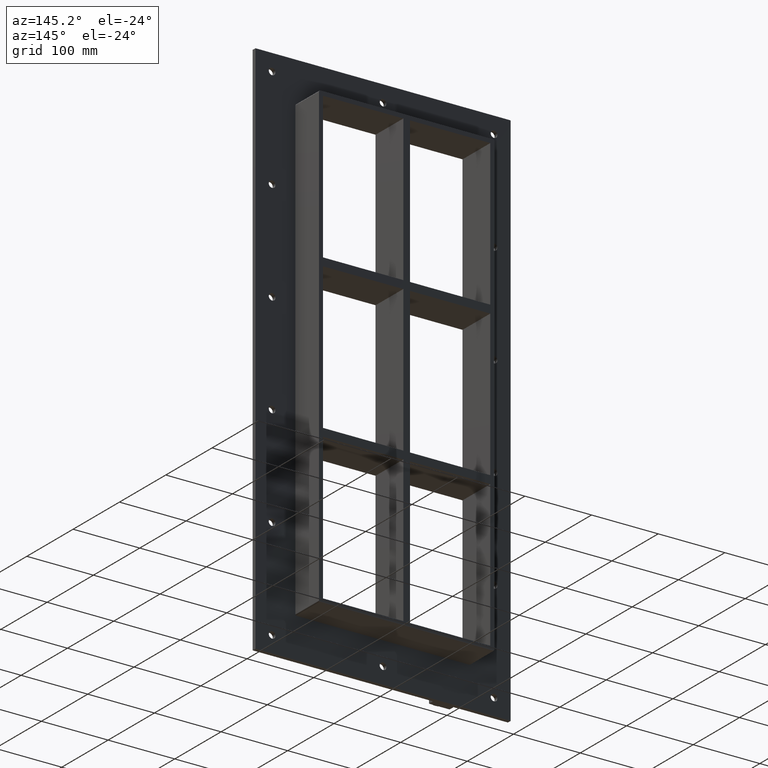
[diagram: clean part render]
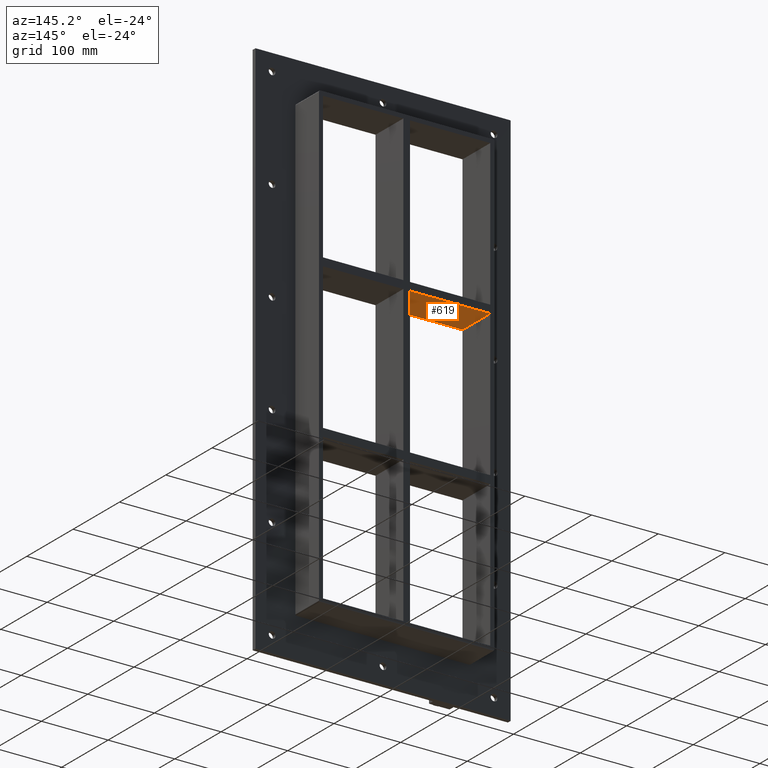
[diagram: same view with one face highlighted and labeled with its STEP entity id]
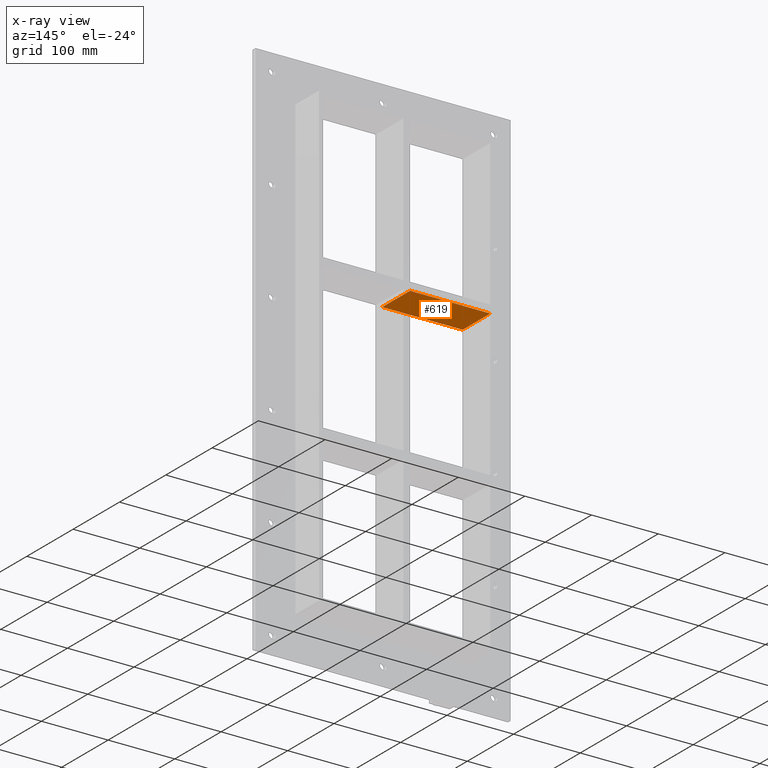
[diagram: x-ray of the same camera — body ghosted, the highlighted face saturated]
A machine part, auxiliary view. The second image highlights one B-rep face of the part: STEP entity #619.
The next image is the same camera in x-ray: the body ghosted, the highlighted face saturated — about 0% of this face is hidden behind the body in this view.
In plain terms, the highlighted planar face has unit normal (0, 0, -1).
Its self-contained STEP definition (entity closure, byte-faithful):
#580=CARTESIAN_POINT('',(125.49999999999272,-3.0,108.99999999998899));
#581=DIRECTION('',(0.0,0.0,-1.0));
#582=DIRECTION('',(-1.0,0.0,0.0));
#583=AXIS2_PLACEMENT_3D('',#580,#581,#582);
#584=PLANE('',#583);
#585=CARTESIAN_POINT('',(-5.000000000000409,-3.0,108.99999999998869));
#586=VERTEX_POINT('',#585);
#587=CARTESIAN_POINT('',(-5.000000000000402,57.0,108.99999999998869));
#588=VERTEX_POINT('',#587);
#589=CARTESIAN_POINT('',(-5.0000000000004,-3.0,108.99999999998867));
#590=DIRECTION('',(0.0,1.0,0.0));
#591=VECTOR('',#590,60.0);
#592=LINE('',#589,#591);
#593=EDGE_CURVE('',#586,#588,#592,.T.);
#594=ORIENTED_EDGE('',*,*,#593,.F.);
#595=CARTESIAN_POINT('',(-125.49999999999875,-3.0,108.9999999999884));
#596=VERTEX_POINT('',#595);
#597=CARTESIAN_POINT('',(-5.000000000000398,-3.0,108.99999999998869));
#598=DIRECTION('',(-1.0,0.0,0.0));
#599=VECTOR('',#598,120.49999999999835);
#600=LINE('',#597,#599);
#601=EDGE_CURVE('',#586,#596,#600,.T.);
#602=ORIENTED_EDGE('',*,*,#601,.T.);
#603=CARTESIAN_POINT('',(-125.49999999999875,57.0,108.9999999999884));
#604=VERTEX_POINT('',#603);
#605=CARTESIAN_POINT('',(-125.5,57.000000000000007,108.99999999998839));
#606=DIRECTION('',(0.0,-1.0,0.0));
#607=VECTOR('',#606,60.000000000000007);
#608=LINE('',#605,#607);
#609=EDGE_CURVE('',#604,#596,#608,.T.);
#610=ORIENTED_EDGE('',*,*,#609,.F.);
#611=CARTESIAN_POINT('',(-5.000000000000398,57.0,108.99999999998869));
#612=DIRECTION('',(-1.0,0.0,0.0));
#613=VECTOR('',#612,120.49999999999835);
#614=LINE('',#611,#613);
#615=EDGE_CURVE('',#588,#604,#614,.T.);
#616=ORIENTED_EDGE('',*,*,#615,.F.);
#617=EDGE_LOOP('',(#594,#602,#610,#616));
#618=FACE_OUTER_BOUND('',#617,.T.);
#619=ADVANCED_FACE('',(#618),#584,.T.);